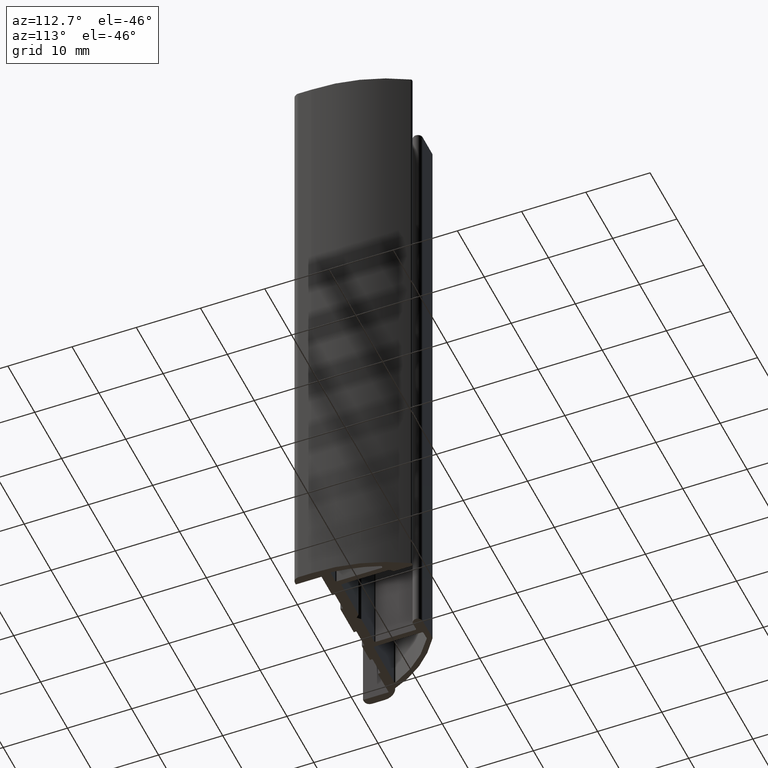
[diagram: clean part render]
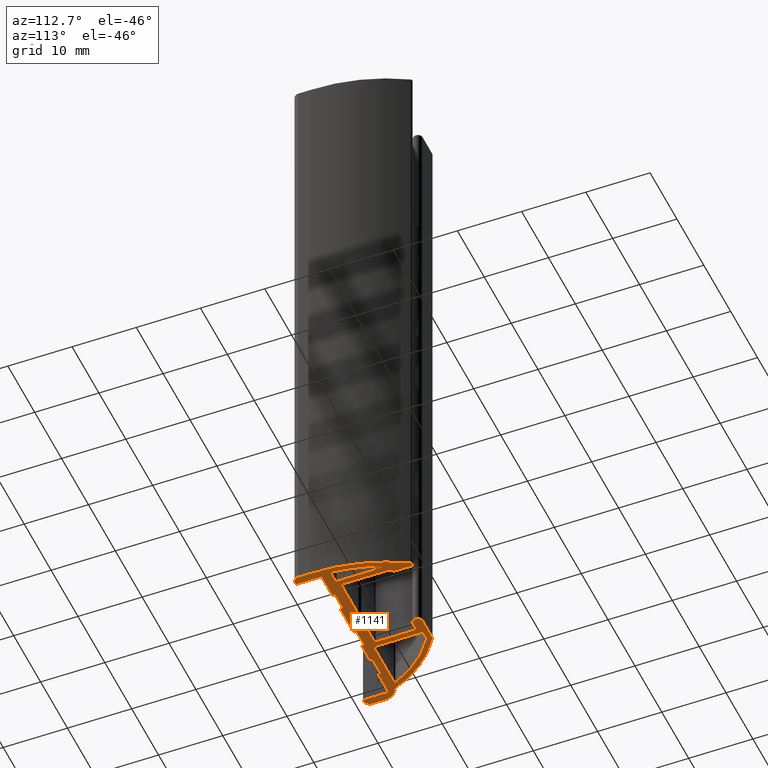
[diagram: same view with one face highlighted and labeled with its STEP entity id]
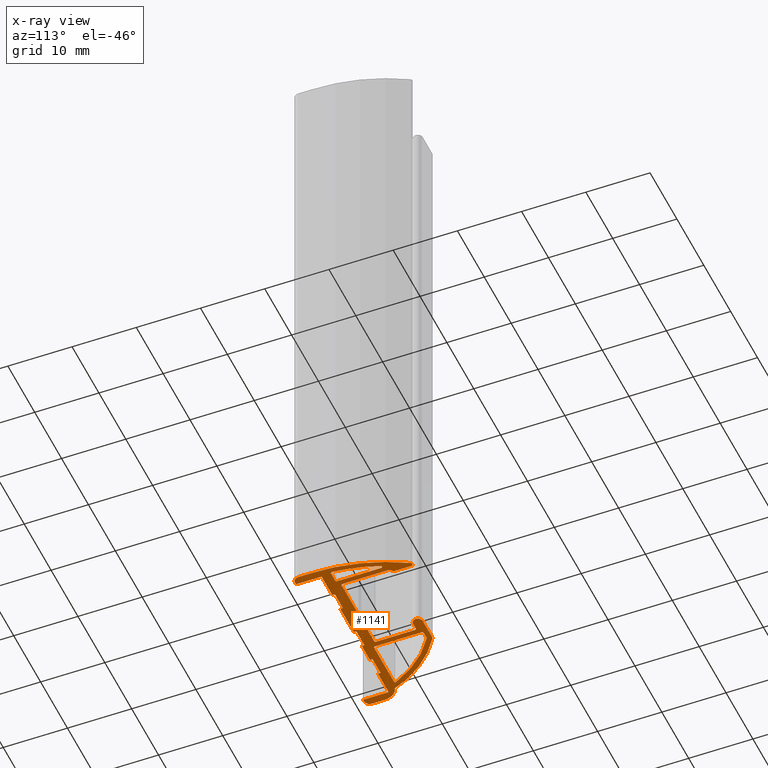
[diagram: x-ray of the same camera — body ghosted, the highlighted face saturated]
A machine part, auxiliary view. The second image highlights one B-rep face of the part: STEP entity #1141.
The next image is the same camera in x-ray: the body ghosted, the highlighted face saturated — about 0% of this face is hidden behind the body in this view.
In plain terms, the highlighted planar face has unit normal (0, 0, 1).
Its self-contained STEP definition (entity closure, byte-faithful):
#15=FACE_BOUND('',#156,.T.);
#16=FACE_BOUND('',#157,.T.);
#19=CIRCLE('',#1190,0.2);
#21=CIRCLE('',#1193,16.9704085361476);
#23=CIRCLE('',#1196,0.2);
#25=CIRCLE('',#1200,0.2);
#27=CIRCLE('',#1204,0.2);
#29=CIRCLE('',#1207,26.3385591515752);
#31=CIRCLE('',#1210,0.2);
#33=CIRCLE('',#1214,0.2);
#35=CIRCLE('',#1218,0.2);
#37=CIRCLE('',#1221,0.2);
#38=CIRCLE('',#1222,27.1385591515752);
#39=CIRCLE('',#1223,0.9);
#40=CIRCLE('',#1224,0.9);
#41=CIRCLE('',#1225,2.43199080396239);
#42=CIRCLE('',#1226,17.770408536155);
#43=CIRCLE('',#1227,0.500000000000002);
#44=CIRCLE('',#1228,0.75);
#45=CIRCLE('',#1229,0.200000000000003);
#46=CIRCLE('',#1230,0.2);
#47=CIRCLE('',#1231,0.2);
#48=CIRCLE('',#1232,0.2);
#96=FACE_OUTER_BOUND('',#155,.T.);
#155=EDGE_LOOP('',(#803,#804,#805,#806,#807,#808,#809,#810,#811,#812,#813,
#814,#815,#816,#817,#818,#819,#820,#821,#822,#823,#824,#825,#826,#827,#828,
#829,#830,#831,#832,#833,#834,#835,#836,#837,#838,#839,#840,#841,#842,#843,
#844,#845));
#156=EDGE_LOOP('',(#846,#847,#848,#849,#850,#851,#852,#853));
#157=EDGE_LOOP('',(#854,#855,#856,#857,#858,#859));
#205=LINE('',#1628,#334);
#211=LINE('',#1652,#340);
#215=LINE('',#1664,#344);
#221=LINE('',#1688,#350);
#225=LINE('',#1700,#354);
#228=LINE('',#1714,#357);
#229=LINE('',#1718,#358);
#230=LINE('',#1720,#359);
#231=LINE('',#1722,#360);
#232=LINE('',#1724,#361);
#233=LINE('',#1726,#362);
#234=LINE('',#1728,#363);
#235=LINE('',#1730,#364);
#236=LINE('',#1732,#365);
#237=LINE('',#1734,#366);
#238=LINE('',#1736,#367);
#239=LINE('',#1738,#368);
#240=LINE('',#1740,#369);
#241=LINE('',#1742,#370);
#242=LINE('',#1744,#371);
#243=LINE('',#1746,#372);
#244=LINE('',#1748,#373);
#245=LINE('',#1750,#374);
#246=LINE('',#1754,#375);
#247=LINE('',#1758,#376);
#248=LINE('',#1764,#377);
#249=LINE('',#1768,#378);
#250=LINE('',#1772,#379);
#251=LINE('',#1776,#380);
#252=LINE('',#1778,#381);
#253=LINE('',#1780,#382);
#254=LINE('',#1782,#383);
#255=LINE('',#1786,#384);
#256=LINE('',#1788,#385);
#257=LINE('',#1790,#386);
#258=LINE('',#1793,#387);
#334=VECTOR('',#1294,7.3427607222717);
#340=VECTOR('',#1320,1.14149556564396);
#344=VECTOR('',#1332,7.30000000000001);
#350=VECTOR('',#1358,1.59439573474082);
#354=VECTOR('',#1370,6.8960815346862);
#357=VECTOR('',#1385,1.97843941859135);
#358=VECTOR('',#1388,0.299658244272596);
#359=VECTOR('',#1389,4.00001370533875);
#360=VECTOR('',#1390,4.00000021304052);
#361=VECTOR('',#1391,0.400000000000005);
#362=VECTOR('',#1392,3.);
#363=VECTOR('',#1393,0.400000000000004);
#364=VECTOR('',#1394,5.);
#365=VECTOR('',#1395,0.399999601714623);
#366=VECTOR('',#1396,3.00034128829927);
#367=VECTOR('',#1397,0.399999601714622);
#368=VECTOR('',#1398,2.99965871170073);
#369=VECTOR('',#1399,0.400000000000006);
#370=VECTOR('',#1400,3.);
#371=VECTOR('',#1401,0.400000000000005);
#372=VECTOR('',#1402,4.00046634443474);
#373=VECTOR('',#1403,4.00001370533876);
#374=VECTOR('',#1404,0.299999999999838);
#375=VECTOR('',#1407,2.00307715374834);
#376=VECTOR('',#1410,0.300000000017442);
#377=VECTOR('',#1415,3.53870038560117);
#378=VECTOR('',#1418,1.04999999999637);
#379=VECTOR('',#1421,6.10000000000082);
#380=VECTOR('',#1424,4.80000000000032);
#381=VECTOR('',#1425,0.707106781187492);
#382=VECTOR('',#1426,0.707106781185504);
#383=VECTOR('',#1427,6.29999974563083);
#384=VECTOR('',#1430,7.30000039828612);
#385=VECTOR('',#1431,0.707106781185458);
#386=VECTOR('',#1432,2.80000000000035);
#387=VECTOR('',#1435,0.184908010167617);
#463=VERTEX_POINT('',#1625);
#464=VERTEX_POINT('',#1627);
#466=VERTEX_POINT('',#1633);
#468=VERTEX_POINT('',#1639);
#470=VERTEX_POINT('',#1645);
#472=VERTEX_POINT('',#1651);
#474=VERTEX_POINT('',#1657);
#476=VERTEX_POINT('',#1663);
#479=VERTEX_POINT('',#1673);
#480=VERTEX_POINT('',#1675);
#482=VERTEX_POINT('',#1681);
#484=VERTEX_POINT('',#1687);
#486=VERTEX_POINT('',#1693);
#488=VERTEX_POINT('',#1699);
#490=VERTEX_POINT('',#1708);
#491=VERTEX_POINT('',#1709);
#492=VERTEX_POINT('',#1711);
#493=VERTEX_POINT('',#1713);
#494=VERTEX_POINT('',#1715);
#495=VERTEX_POINT('',#1717);
#496=VERTEX_POINT('',#1719);
#497=VERTEX_POINT('',#1721);
#498=VERTEX_POINT('',#1723);
#499=VERTEX_POINT('',#1725);
#500=VERTEX_POINT('',#1727);
#501=VERTEX_POINT('',#1729);
#502=VERTEX_POINT('',#1731);
#503=VERTEX_POINT('',#1733);
#504=VERTEX_POINT('',#1735);
#505=VERTEX_POINT('',#1737);
#506=VERTEX_POINT('',#1739);
#507=VERTEX_POINT('',#1741);
#508=VERTEX_POINT('',#1743);
#509=VERTEX_POINT('',#1745);
#510=VERTEX_POINT('',#1747);
#511=VERTEX_POINT('',#1749);
#512=VERTEX_POINT('',#1751);
#513=VERTEX_POINT('',#1753);
#514=VERTEX_POINT('',#1755);
#515=VERTEX_POINT('',#1757);
#516=VERTEX_POINT('',#1759);
#517=VERTEX_POINT('',#1761);
#518=VERTEX_POINT('',#1763);
#519=VERTEX_POINT('',#1765);
#520=VERTEX_POINT('',#1767);
#521=VERTEX_POINT('',#1769);
#522=VERTEX_POINT('',#1771);
#523=VERTEX_POINT('',#1773);
#524=VERTEX_POINT('',#1775);
#525=VERTEX_POINT('',#1777);
#526=VERTEX_POINT('',#1779);
#527=VERTEX_POINT('',#1781);
#528=VERTEX_POINT('',#1783);
#529=VERTEX_POINT('',#1785);
#530=VERTEX_POINT('',#1787);
#531=VERTEX_POINT('',#1789);
#532=VERTEX_POINT('',#1791);
#577=EDGE_CURVE('',#464,#463,#205,.T.);
#580=EDGE_CURVE('',#466,#464,#19,.T.);
#583=EDGE_CURVE('',#468,#466,#21,.T.);
#586=EDGE_CURVE('',#470,#468,#23,.T.);
#589=EDGE_CURVE('',#472,#470,#211,.T.);
#592=EDGE_CURVE('',#474,#472,#25,.T.);
#595=EDGE_CURVE('',#476,#474,#215,.T.);
#598=EDGE_CURVE('',#463,#476,#27,.T.);
#601=EDGE_CURVE('',#480,#479,#29,.T.);
#604=EDGE_CURVE('',#482,#480,#31,.T.);
#607=EDGE_CURVE('',#484,#482,#221,.T.);
#610=EDGE_CURVE('',#486,#484,#33,.T.);
#613=EDGE_CURVE('',#488,#486,#225,.T.);
#616=EDGE_CURVE('',#479,#488,#35,.T.);
#618=EDGE_CURVE('',#490,#491,#37,.T.);
#619=EDGE_CURVE('',#491,#492,#38,.T.);
#620=EDGE_CURVE('',#492,#493,#228,.T.);
#621=EDGE_CURVE('',#493,#494,#39,.T.);
#622=EDGE_CURVE('',#494,#495,#229,.T.);
#623=EDGE_CURVE('',#495,#496,#230,.T.);
#624=EDGE_CURVE('',#496,#497,#231,.T.);
#625=EDGE_CURVE('',#497,#498,#232,.T.);
#626=EDGE_CURVE('',#498,#499,#233,.T.);
#627=EDGE_CURVE('',#499,#500,#234,.T.);
#628=EDGE_CURVE('',#500,#501,#235,.T.);
#629=EDGE_CURVE('',#501,#502,#236,.T.);
#630=EDGE_CURVE('',#502,#503,#237,.T.);
#631=EDGE_CURVE('',#503,#504,#238,.T.);
#632=EDGE_CURVE('',#504,#505,#239,.T.);
#633=EDGE_CURVE('',#505,#506,#240,.T.);
#634=EDGE_CURVE('',#506,#507,#241,.T.);
#635=EDGE_CURVE('',#507,#508,#242,.T.);
#636=EDGE_CURVE('',#508,#509,#243,.T.);
#637=EDGE_CURVE('',#509,#510,#244,.T.);
#638=EDGE_CURVE('',#510,#511,#245,.T.);
#639=EDGE_CURVE('',#511,#512,#40,.T.);
#640=EDGE_CURVE('',#512,#513,#246,.T.);
#641=EDGE_CURVE('',#513,#514,#41,.T.);
#642=EDGE_CURVE('',#514,#515,#247,.T.);
#643=EDGE_CURVE('',#515,#516,#42,.T.);
#644=EDGE_CURVE('',#516,#517,#43,.T.);
#645=EDGE_CURVE('',#517,#518,#248,.T.);
#646=EDGE_CURVE('',#518,#519,#44,.T.);
#647=EDGE_CURVE('',#519,#520,#249,.T.);
#648=EDGE_CURVE('',#520,#521,#45,.T.);
#649=EDGE_CURVE('',#521,#522,#250,.T.);
#650=EDGE_CURVE('',#522,#523,#46,.T.);
#651=EDGE_CURVE('',#523,#524,#251,.T.);
#652=EDGE_CURVE('',#524,#525,#252,.T.);
#653=EDGE_CURVE('',#525,#526,#253,.T.);
#654=EDGE_CURVE('',#526,#527,#254,.T.);
#655=EDGE_CURVE('',#527,#528,#47,.T.);
#656=EDGE_CURVE('',#528,#529,#255,.T.);
#657=EDGE_CURVE('',#529,#530,#256,.T.);
#658=EDGE_CURVE('',#530,#531,#257,.T.);
#659=EDGE_CURVE('',#531,#532,#48,.T.);
#660=EDGE_CURVE('',#532,#490,#258,.T.);
#803=ORIENTED_EDGE('',*,*,#618,.T.);
#804=ORIENTED_EDGE('',*,*,#619,.T.);
#805=ORIENTED_EDGE('',*,*,#620,.T.);
#806=ORIENTED_EDGE('',*,*,#621,.T.);
#807=ORIENTED_EDGE('',*,*,#622,.T.);
#808=ORIENTED_EDGE('',*,*,#623,.T.);
#809=ORIENTED_EDGE('',*,*,#624,.T.);
#810=ORIENTED_EDGE('',*,*,#625,.T.);
#811=ORIENTED_EDGE('',*,*,#626,.T.);
#812=ORIENTED_EDGE('',*,*,#627,.T.);
#813=ORIENTED_EDGE('',*,*,#628,.T.);
#814=ORIENTED_EDGE('',*,*,#629,.T.);
#815=ORIENTED_EDGE('',*,*,#630,.T.);
#816=ORIENTED_EDGE('',*,*,#631,.T.);
#817=ORIENTED_EDGE('',*,*,#632,.T.);
#818=ORIENTED_EDGE('',*,*,#633,.T.);
#819=ORIENTED_EDGE('',*,*,#634,.T.);
#820=ORIENTED_EDGE('',*,*,#635,.T.);
#821=ORIENTED_EDGE('',*,*,#636,.T.);
#822=ORIENTED_EDGE('',*,*,#637,.T.);
#823=ORIENTED_EDGE('',*,*,#638,.T.);
#824=ORIENTED_EDGE('',*,*,#639,.T.);
#825=ORIENTED_EDGE('',*,*,#640,.T.);
#826=ORIENTED_EDGE('',*,*,#641,.T.);
#827=ORIENTED_EDGE('',*,*,#642,.T.);
#828=ORIENTED_EDGE('',*,*,#643,.T.);
#829=ORIENTED_EDGE('',*,*,#644,.T.);
#830=ORIENTED_EDGE('',*,*,#645,.T.);
#831=ORIENTED_EDGE('',*,*,#646,.T.);
#832=ORIENTED_EDGE('',*,*,#647,.T.);
#833=ORIENTED_EDGE('',*,*,#648,.T.);
#834=ORIENTED_EDGE('',*,*,#649,.T.);
#835=ORIENTED_EDGE('',*,*,#650,.T.);
#836=ORIENTED_EDGE('',*,*,#651,.T.);
#837=ORIENTED_EDGE('',*,*,#652,.T.);
#838=ORIENTED_EDGE('',*,*,#653,.T.);
#839=ORIENTED_EDGE('',*,*,#654,.T.);
#840=ORIENTED_EDGE('',*,*,#655,.T.);
#841=ORIENTED_EDGE('',*,*,#656,.T.);
#842=ORIENTED_EDGE('',*,*,#657,.T.);
#843=ORIENTED_EDGE('',*,*,#658,.T.);
#844=ORIENTED_EDGE('',*,*,#659,.T.);
#845=ORIENTED_EDGE('',*,*,#660,.T.);
#846=ORIENTED_EDGE('',*,*,#577,.T.);
#847=ORIENTED_EDGE('',*,*,#598,.T.);
#848=ORIENTED_EDGE('',*,*,#595,.T.);
#849=ORIENTED_EDGE('',*,*,#592,.T.);
#850=ORIENTED_EDGE('',*,*,#589,.T.);
#851=ORIENTED_EDGE('',*,*,#586,.T.);
#852=ORIENTED_EDGE('',*,*,#583,.T.);
#853=ORIENTED_EDGE('',*,*,#580,.T.);
#854=ORIENTED_EDGE('',*,*,#601,.T.);
#855=ORIENTED_EDGE('',*,*,#616,.T.);
#856=ORIENTED_EDGE('',*,*,#613,.T.);
#857=ORIENTED_EDGE('',*,*,#610,.T.);
#858=ORIENTED_EDGE('',*,*,#607,.T.);
#859=ORIENTED_EDGE('',*,*,#604,.T.);
#1094=PLANE('',#1220);
#1141=ADVANCED_FACE('',(#96,#15,#16),#1094,.F.);
#1190=AXIS2_PLACEMENT_3D('',#1634,#1299,#1300);
#1193=AXIS2_PLACEMENT_3D('',#1640,#1306,#1307);
#1196=AXIS2_PLACEMENT_3D('',#1646,#1313,#1314);
#1200=AXIS2_PLACEMENT_3D('',#1658,#1325,#1326);
#1204=AXIS2_PLACEMENT_3D('',#1669,#1337,#1338);
#1207=AXIS2_PLACEMENT_3D('',#1676,#1344,#1345);
#1210=AXIS2_PLACEMENT_3D('',#1682,#1351,#1352);
#1214=AXIS2_PLACEMENT_3D('',#1694,#1363,#1364);
#1218=AXIS2_PLACEMENT_3D('',#1705,#1375,#1376);
#1220=AXIS2_PLACEMENT_3D('',#1707,#1379,#1380);
#1221=AXIS2_PLACEMENT_3D('',#1710,#1381,#1382);
#1222=AXIS2_PLACEMENT_3D('',#1712,#1383,#1384);
#1223=AXIS2_PLACEMENT_3D('',#1716,#1386,#1387);
#1224=AXIS2_PLACEMENT_3D('',#1752,#1405,#1406);
#1225=AXIS2_PLACEMENT_3D('',#1756,#1408,#1409);
#1226=AXIS2_PLACEMENT_3D('',#1760,#1411,#1412);
#1227=AXIS2_PLACEMENT_3D('',#1762,#1413,#1414);
#1228=AXIS2_PLACEMENT_3D('',#1766,#1416,#1417);
#1229=AXIS2_PLACEMENT_3D('',#1770,#1419,#1420);
#1230=AXIS2_PLACEMENT_3D('',#1774,#1422,#1423);
#1231=AXIS2_PLACEMENT_3D('',#1784,#1428,#1429);
#1232=AXIS2_PLACEMENT_3D('',#1792,#1433,#1434);
#1294=DIRECTION('',(1.,-2.26799510419361E-16,0.));
#1299=DIRECTION('center_axis',(0.,0.,1.));
#1300=DIRECTION('ref_axis',(-0.915281034034822,0.402815874483798,0.));
#1306=DIRECTION('center_axis',(0.,0.,1.));
#1307=DIRECTION('ref_axis',(-0.545506788925575,0.838106403290244,0.));
#1313=DIRECTION('center_axis',(0.,0.,1.));
#1314=DIRECTION('ref_axis',(0.,1.,0.));
#1320=DIRECTION('',(-1.,0.,0.));
#1325=DIRECTION('center_axis',(0.,0.,1.));
#1326=DIRECTION('ref_axis',(1.,0.,0.));
#1332=DIRECTION('',(0.,1.,0.));
#1337=DIRECTION('center_axis',(0.,0.,1.));
#1338=DIRECTION('ref_axis',(0.,-1.,0.));
#1344=DIRECTION('center_axis',(0.,0.,1.));
#1345=DIRECTION('ref_axis',(0.995825937143963,0.0912726843658481,0.));
#1351=DIRECTION('center_axis',(0.,0.,1.));
#1352=DIRECTION('ref_axis',(0.,-1.,0.));
#1358=DIRECTION('',(1.,0.,0.));
#1363=DIRECTION('center_axis',(0.,0.,1.));
#1364=DIRECTION('ref_axis',(-1.,0.,0.));
#1370=DIRECTION('',(0.,-1.,0.));
#1375=DIRECTION('center_axis',(0.,0.,1.));
#1376=DIRECTION('ref_axis',(0.934828093862124,0.355100598318431,0.));
#1379=DIRECTION('center_axis',(0.,0.,1.));
#1380=DIRECTION('ref_axis',(1.,0.,0.));
#1381=DIRECTION('center_axis',(0.,0.,-1.));
#1382=DIRECTION('ref_axis',(0.865672410573853,0.500610904367109,0.));
#1383=DIRECTION('center_axis',(0.,0.,-1.));
#1384=DIRECTION('ref_axis',(0.999871042393538,-0.0160592211162188,0.));
#1385=DIRECTION('',(-3.59143034193085E-14,-1.,0.));
#1386=DIRECTION('center_axis',(0.,0.,-1.));
#1387=DIRECTION('ref_axis',(0.,-1.,0.));
#1388=DIRECTION('',(-1.,0.,0.));
#1389=DIRECTION('',(0.,1.,0.));
#1390=DIRECTION('',(-1.,2.77555741373634E-15,0.));
#1391=DIRECTION('',(0.,1.,0.));
#1392=DIRECTION('',(-1.,0.,0.));
#1393=DIRECTION('',(0.,-1.,0.));
#1394=DIRECTION('',(-1.,0.,0.));
#1395=DIRECTION('',(0.,1.,0.));
#1396=DIRECTION('',(-1.,0.,0.));
#1397=DIRECTION('',(0.,-1.,0.));
#1398=DIRECTION('',(-1.,0.,0.));
#1399=DIRECTION('',(0.,1.,0.));
#1400=DIRECTION('',(-1.,0.,0.));
#1401=DIRECTION('',(0.,-1.,0.));
#1402=DIRECTION('',(-1.,-8.32570202348768E-16,0.));
#1403=DIRECTION('',(-1.11021922064253E-15,-1.,0.));
#1404=DIRECTION('',(-1.,0.,0.));
#1405=DIRECTION('center_axis',(0.,0.,-1.));
#1406=DIRECTION('ref_axis',(-1.,0.,0.));
#1407=DIRECTION('',(-1.10851748525772E-15,1.,0.));
#1408=DIRECTION('center_axis',(0.,0.,-1.));
#1409=DIRECTION('ref_axis',(-0.506525764905382,0.86222482537156,0.));
#1410=DIRECTION('',(1.,-3.70074341520203E-15,0.));
#1411=DIRECTION('center_axis',(0.,0.,-1.));
#1412=DIRECTION('ref_axis',(-0.538237196627833,0.84279340301536,0.));
#1413=DIRECTION('center_axis',(0.,0.,-1.));
#1414=DIRECTION('ref_axis',(0.,1.,0.));
#1415=DIRECTION('',(1.,1.56868751751718E-16,0.));
#1416=DIRECTION('center_axis',(0.,0.,-1.));
#1417=DIRECTION('ref_axis',(0.,-1.,0.));
#1418=DIRECTION('',(-1.,-1.05735526155142E-15,0.));
#1419=DIRECTION('center_axis',(0.,0.,1.));
#1420=DIRECTION('ref_axis',(0.,-1.,0.));
#1421=DIRECTION('',(0.,-1.,0.));
#1422=DIRECTION('center_axis',(0.,0.,1.));
#1423=DIRECTION('ref_axis',(1.,0.,0.));
#1424=DIRECTION('',(1.,0.,0.));
#1425=DIRECTION('',(0.707106781187541,-0.707106781185554,0.));
#1426=DIRECTION('',(0.707106781185554,0.707106781187541,0.));
#1427=DIRECTION('',(1.,-2.64338826059902E-16,0.));
#1428=DIRECTION('center_axis',(0.,0.,1.));
#1429=DIRECTION('ref_axis',(0.,1.,0.));
#1430=DIRECTION('',(0.,1.,0.));
#1431=DIRECTION('',(-0.707106781187541,0.707106781185554,0.));
#1432=DIRECTION('',(0.,1.,0.));
#1433=DIRECTION('center_axis',(0.,0.,-1.));
#1434=DIRECTION('ref_axis',(0.,1.,0.));
#1435=DIRECTION('',(1.,6.00419107651827E-15,0.));
#1625=CARTESIAN_POINT('',(-3.60000025436747,-3.74999960171249,-50.));
#1627=CARTESIAN_POINT('',(-10.9427609766392,-3.74999960171249,-50.));
#1628=CARTESIAN_POINT('',(-4.74275572232825,-3.74999960171249,-50.));
#1633=CARTESIAN_POINT('',(-11.1258171834461,-3.46943642681573,-50.));
#1634=CARTESIAN_POINT('Origin',(-10.9427609766392,-3.54999960171249,-50.));
#1639=CARTESIAN_POINT('',(-4.85059717779655,3.91762167894556,-50.));
#1640=CARTESIAN_POINT('Origin',(4.40687588951251,-10.3053863816512,-50.));
#1645=CARTESIAN_POINT('',(-4.74149582001143,3.95000039828751,-50.));
#1646=CARTESIAN_POINT('Origin',(-4.74149582001143,3.75000039828751,-50.));
#1651=CARTESIAN_POINT('',(-3.60000025436747,3.95000039828751,-50.));
#1652=CARTESIAN_POINT('',(-1.0713753611924,3.95000039828751,-50.));
#1657=CARTESIAN_POINT('',(-3.40000025436747,3.75000039828751,-50.));
#1658=CARTESIAN_POINT('Origin',(-3.60000025436747,3.75000039828751,-50.));
#1663=CARTESIAN_POINT('',(-3.40000025436747,-3.54999960171249,-50.));
#1664=CARTESIAN_POINT('',(-3.40000025436747,-2.92398339768009,-50.));
#1669=CARTESIAN_POINT('Origin',(-3.60000025436747,-3.54999960171249,-50.));
#1673=CARTESIAN_POINT('',(11.08696536441,3.41710205263739,-50.));
#1675=CARTESIAN_POINT('',(12.6935606678072,-3.53174506483932,-50.));
#1676=CARTESIAN_POINT('Origin',(-13.5350596823319,-5.93573606093227,-50.));
#1681=CARTESIAN_POINT('',(12.4943954803784,-3.74999960171249,-50.));
#1682=CARTESIAN_POINT('Origin',(12.4943954803784,-3.54999960171249,-50.));
#1687=CARTESIAN_POINT('',(10.8999997456376,-3.74999960171249,-50.));
#1688=CARTESIAN_POINT('',(6.17862463881013,-3.74999960171249,-50.));
#1693=CARTESIAN_POINT('',(10.6999997456376,-3.54999960171249,-50.));
#1694=CARTESIAN_POINT('Origin',(10.8999997456376,-3.54999960171249,-50.));
#1699=CARTESIAN_POINT('',(10.6999997456376,3.34608193297371,-50.));
#1700=CARTESIAN_POINT('',(10.6999997456376,0.52405736966301,-50.));
#1705=CARTESIAN_POINT('Origin',(10.8999997456376,3.34608193297371,-50.));
#1707=CARTESIAN_POINT('Origin',(1.45724953198268,-2.29796719364768,-50.));
#1708=CARTESIAN_POINT('',(9.7849077557986,7.75000039828459,-50.));
#1709=CARTESIAN_POINT('',(9.95804223791337,7.65012257915801,-50.));
#1710=CARTESIAN_POINT('Origin',(9.7849077557986,7.55000039828459,-50.));
#1711=CARTESIAN_POINT('',(13.5999997456123,-6.371560183123,-50.));
#1712=CARTESIAN_POINT('Origin',(-13.5350596823319,-5.93573606093227,-50.));
#1713=CARTESIAN_POINT('',(13.5999997456122,-8.34999960171435,-50.));
#1714=CARTESIAN_POINT('',(13.5999997456122,-8.34999960171434,-50.));
#1715=CARTESIAN_POINT('',(12.6999997456122,-9.24999960171434,-50.));
#1716=CARTESIAN_POINT('Origin',(12.6999997456122,-8.34999960171434,-50.));
#1717=CARTESIAN_POINT('',(12.4003415013396,-9.24999960171434,-50.));
#1718=CARTESIAN_POINT('',(12.4003415013396,-9.24999960171434,-50.));
#1719=CARTESIAN_POINT('',(12.4003415013396,-5.24998589637559,-50.));
#1720=CARTESIAN_POINT('',(12.4003415013396,-5.24998589637559,-50.));
#1721=CARTESIAN_POINT('',(8.40034128829911,-5.24998589637558,-50.));
#1722=CARTESIAN_POINT('',(8.40034128829911,-5.24998589637558,-50.));
#1723=CARTESIAN_POINT('',(8.40034128829911,-4.84998589637558,-50.));
#1724=CARTESIAN_POINT('',(8.40034128829911,-4.84998589637558,-50.));
#1725=CARTESIAN_POINT('',(5.40034128829912,-4.84998589637558,-50.));
#1726=CARTESIAN_POINT('',(5.40034128829912,-4.84998589637558,-50.));
#1727=CARTESIAN_POINT('',(5.40034128829912,-5.24998589637558,-50.));
#1728=CARTESIAN_POINT('',(5.40034128829912,-5.24998589637558,-50.));
#1729=CARTESIAN_POINT('',(0.400341288299115,-5.24998589637558,-50.));
#1730=CARTESIAN_POINT('',(0.400341288299115,-5.24998589637558,-50.));
#1731=CARTESIAN_POINT('',(0.400341288299115,-4.84998629466096,-50.));
#1732=CARTESIAN_POINT('',(0.400341288299115,-4.84998629466096,-50.));
#1733=CARTESIAN_POINT('',(-2.60000000000016,-4.84998629466096,-50.));
#1734=CARTESIAN_POINT('',(-2.60000000000016,-4.84998629466096,-50.));
#1735=CARTESIAN_POINT('',(-2.60000000000016,-5.24998589637558,-50.));
#1736=CARTESIAN_POINT('',(-2.60000000000016,-5.24998589637558,-50.));
#1737=CARTESIAN_POINT('',(-5.59965871170089,-5.24998589637558,-50.));
#1738=CARTESIAN_POINT('',(-5.59965871170089,-5.24998589637558,-50.));
#1739=CARTESIAN_POINT('',(-5.59965871170089,-4.84998589637557,-50.));
#1740=CARTESIAN_POINT('',(-5.59965871170089,-4.84998589637557,-50.));
#1741=CARTESIAN_POINT('',(-8.59965871170089,-4.84998589637557,-50.));
#1742=CARTESIAN_POINT('',(-8.59965871170089,-4.84998589637557,-50.));
#1743=CARTESIAN_POINT('',(-8.59965871170089,-5.24998589637558,-50.));
#1744=CARTESIAN_POINT('',(-8.59965871170089,-5.24998589637558,-50.));
#1745=CARTESIAN_POINT('',(-12.6001250561356,-5.24998589637558,-50.));
#1746=CARTESIAN_POINT('',(-12.6001250561356,-5.24998589637558,-50.));
#1747=CARTESIAN_POINT('',(-12.6001250561356,-9.24999960171435,-50.));
#1748=CARTESIAN_POINT('',(-12.6001250561356,-9.24999960171435,-50.));
#1749=CARTESIAN_POINT('',(-12.9001250561355,-9.24999960171435,-50.));
#1750=CARTESIAN_POINT('',(-12.9001250561355,-9.24999960171435,-50.));
#1751=CARTESIAN_POINT('',(-13.8001250561355,-8.34999960171435,-50.));
#1752=CARTESIAN_POINT('Origin',(-12.9001250561355,-8.34999960171435,-50.));
#1753=CARTESIAN_POINT('',(-13.8001250561355,-6.346922447966,-50.));
#1754=CARTESIAN_POINT('',(-13.8001250561355,-6.346922447966,-50.));
#1755=CARTESIAN_POINT('',(-12.600000254393,-4.24999960171429,-50.));
#1756=CARTESIAN_POINT('Origin',(-11.3681342521731,-6.346922447966,-50.));
#1757=CARTESIAN_POINT('',(-12.3000002543756,-4.2499996017143,-50.));
#1758=CARTESIAN_POINT('',(-12.3000002543756,-4.2499996017143,-50.));
#1759=CARTESIAN_POINT('',(-5.15781898391887,4.6713967015081,-50.));
#1760=CARTESIAN_POINT('Origin',(4.40687588951251,-10.3053863816512,-50.));
#1761=CARTESIAN_POINT('',(-4.88870038560496,4.75000000000042,-50.));
#1762=CARTESIAN_POINT('Origin',(-4.88870038560496,4.25000000000042,-50.));
#1763=CARTESIAN_POINT('',(-1.35000000000379,4.75000000000042,-50.));
#1764=CARTESIAN_POINT('',(-1.35000000000379,4.75000000000042,-50.));
#1765=CARTESIAN_POINT('',(-1.35000000000379,3.25000000000041,-50.));
#1766=CARTESIAN_POINT('Origin',(-1.35000000000379,4.00000000000041,-50.));
#1767=CARTESIAN_POINT('',(-2.40000000000016,3.25000000000041,-50.));
#1768=CARTESIAN_POINT('',(-2.40000000000016,3.25000000000041,-50.));
#1769=CARTESIAN_POINT('',(-2.60000000000016,3.05000000000041,-50.));
#1770=CARTESIAN_POINT('Origin',(-2.40000000000016,3.05000000000041,-50.));
#1771=CARTESIAN_POINT('',(-2.60000000000016,-3.05000000000041,-50.));
#1772=CARTESIAN_POINT('',(-2.60000000000016,-3.05000000000041,-50.));
#1773=CARTESIAN_POINT('',(-2.40000000000016,-3.25000000000041,-50.));
#1774=CARTESIAN_POINT('Origin',(-2.40000000000016,-3.05000000000041,-50.));
#1775=CARTESIAN_POINT('',(2.40000000000016,-3.25000000000041,-50.));
#1776=CARTESIAN_POINT('',(2.40000000000016,-3.25000000000041,-50.));
#1777=CARTESIAN_POINT('',(2.90000000000153,-3.75000000000038,-50.));
#1778=CARTESIAN_POINT('',(2.90000000000153,-3.75000000000038,-50.));
#1779=CARTESIAN_POINT('',(3.40000000000009,-3.25000000000041,-50.));
#1780=CARTESIAN_POINT('',(3.40000000000009,-3.25000000000041,-50.));
#1781=CARTESIAN_POINT('',(9.69999974563092,-3.25000000000041,-50.));
#1782=CARTESIAN_POINT('',(9.69999974563092,-3.25000000000041,-50.));
#1783=CARTESIAN_POINT('',(9.89999974563092,-3.05000000000041,-50.));
#1784=CARTESIAN_POINT('Origin',(9.69999974563092,-3.05000000000041,-50.));
#1785=CARTESIAN_POINT('',(9.89999974563092,4.25000039828571,-50.));
#1786=CARTESIAN_POINT('',(9.89999974563092,4.25000039828571,-50.));
#1787=CARTESIAN_POINT('',(9.39999974563099,4.75000039828424,-50.));
#1788=CARTESIAN_POINT('',(9.39999974563099,4.75000039828424,-50.));
#1789=CARTESIAN_POINT('',(9.39999974563099,7.55000039828459,-50.));
#1790=CARTESIAN_POINT('',(9.39999974563099,7.55000039828459,-50.));
#1791=CARTESIAN_POINT('',(9.59999974563098,7.75000039828459,-50.));
#1792=CARTESIAN_POINT('Origin',(9.59999974563098,7.55000039828459,-50.));
#1793=CARTESIAN_POINT('',(9.7849077557986,7.75000039828459,-50.));